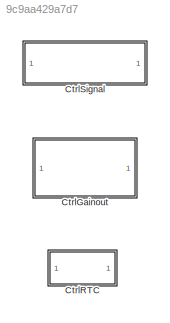
MODEL slx_9c9aa429a7d7
KIND library
CONFIG AbsTol = auto
CONFIG EnableMultiTasking = off
CONFIG FixedStep = auto
CONFIG MaxStep = auto
CONFIG MinStep = auto
CONFIG RelTol = 1e-3
CONFIG SampleTimeConstraint = Unconstrained
CONFIG SolverName = VariableStepAuto
CONFIG StartTime = 0.0
CONFIG StopTime = 10.0
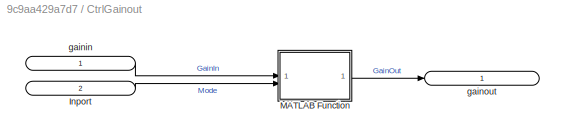
BLOCK [SubSystem] CtrlGainout
BLOCK [Inport] CtrlGainout/Inport
  IconDisplay = Signal name
  Port = 2
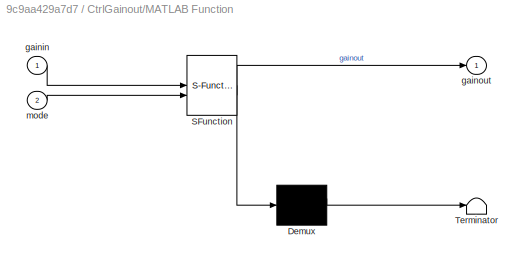
BLOCK [SubSystem] CtrlGainout/MATLAB Function
  ErrorFcn = Stateflow.Translate.translate
  PermitHierarchicalResolution = ExplicitOnly
  SFBlockType = MATLAB Function
  TreatAsAtomicUnit = on
BLOCK [Demux] CtrlGainout/MATLAB Function/ Demux 
  Outputs = 1
BLOCK [S-Function] CtrlGainout/MATLAB Function/ SFunction 
  EnableBusSupport = off
  FunctionName = sf_sfun
  PortCounts = [2 2]
  SFcnIsStateOwnerBlock = off
  SFunctionDeploymentMode = off
  Tag = Stateflow S-Function 2
BLOCK [Terminator] CtrlGainout/MATLAB Function/ Terminator 
BLOCK [Inport] CtrlGainout/MATLAB Function/gainin
BLOCK [Outport] CtrlGainout/MATLAB Function/gainout
  VectorParamsAs1DForOutWhenUnconnected = off
BLOCK [Inport] CtrlGainout/MATLAB Function/mode
  Port = 2
BLOCK [Inport] CtrlGainout/gainin
  IconDisplay = Signal name
BLOCK [Outport] CtrlGainout/gainout
  IconDisplay = Signal name
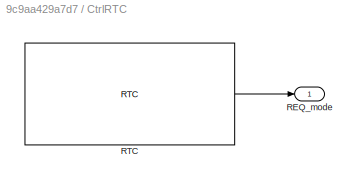
BLOCK [SubSystem] CtrlRTC
BLOCK [Outport] CtrlRTC/REQ_mode
BLOCK [Reference] CtrlRTC/RTC  REF=RTC/RTC
  SourceBlock = RTC/RTC
  SourceProductName = Bose Talaria
  SourceType = Talaria RTC Receive
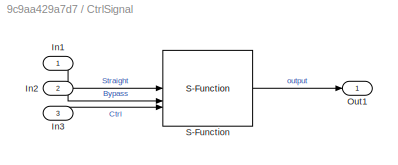
BLOCK [SubSystem] CtrlSignal
BLOCK [Inport] CtrlSignal/In1
  IconDisplay = Signal name
  OutDataTypeStr = single
BLOCK [Inport] CtrlSignal/In2
  IconDisplay = Signal name
  OutDataTypeStr = single
  Port = 2
BLOCK [Inport] CtrlSignal/In3
  IconDisplay = Signal name
  Port = 3
BLOCK [Outport] CtrlSignal/Out1
  IconDisplay = Signal name
  OutDataTypeStr = single
BLOCK [S-Function] CtrlSignal/S-Function
  EnableBusSupport = off
  FunctionName = ctrl_io_signal
  SFcnIsStateOwnerBlock = off
  SFunctionDeploymentMode = off
LINE CtrlGainout/Inport:1 -> CtrlGainout/MATLAB Function:2
LINE CtrlGainout/MATLAB Function:1 -> CtrlGainout/gainout:1
LINE CtrlGainout/gainin:1 -> CtrlGainout/MATLAB Function:1
LINE CtrlRTC/RTC:1 -> CtrlRTC/REQ_mode:1
LINE CtrlSignal/In1:1 -> CtrlSignal/S-Function:1
LINE CtrlSignal/In2:1 -> CtrlSignal/S-Function:2
LINE CtrlSignal/In3:1 -> CtrlSignal/S-Function:3
LINE CtrlSignal/S-Function:1 -> CtrlSignal/Out1:1
CHART CtrlGainout/MATLAB Function states=1 transitions=1
  STATE_LABEL 'eML_blk_kernel()'
  STATE_LABEL 'SCRIPT:\nfunction gainout = fcn(gainin,mode)\n    gainout = gainin;\n    if (mode == 0)\n        gainout(1:end) = 0;\n    elseif (mode < 0)\n        gainout(1:end) = 1;\n    end\n'
CHART  states=0 transitions=0
